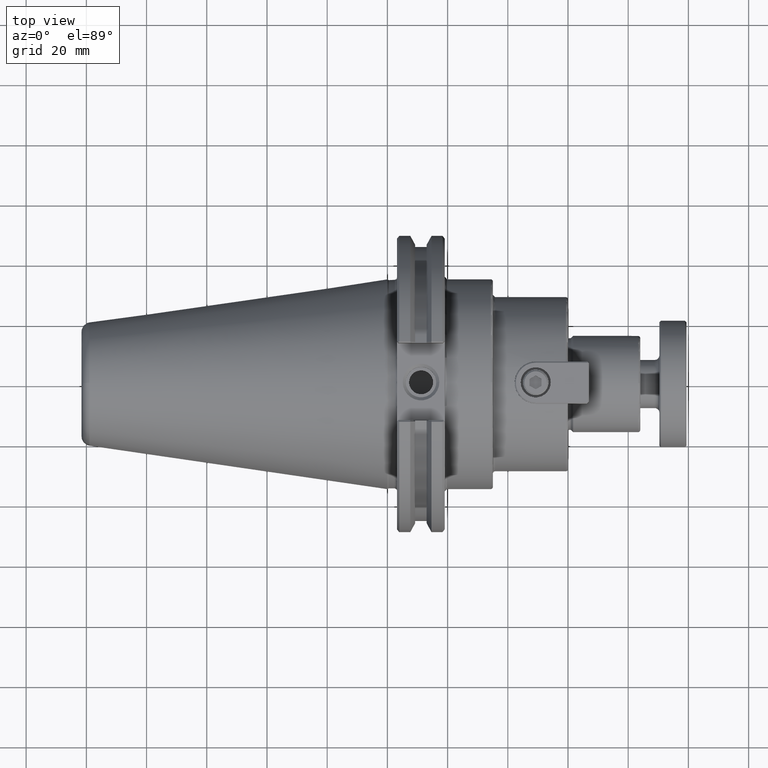
[diagram: clean part render]
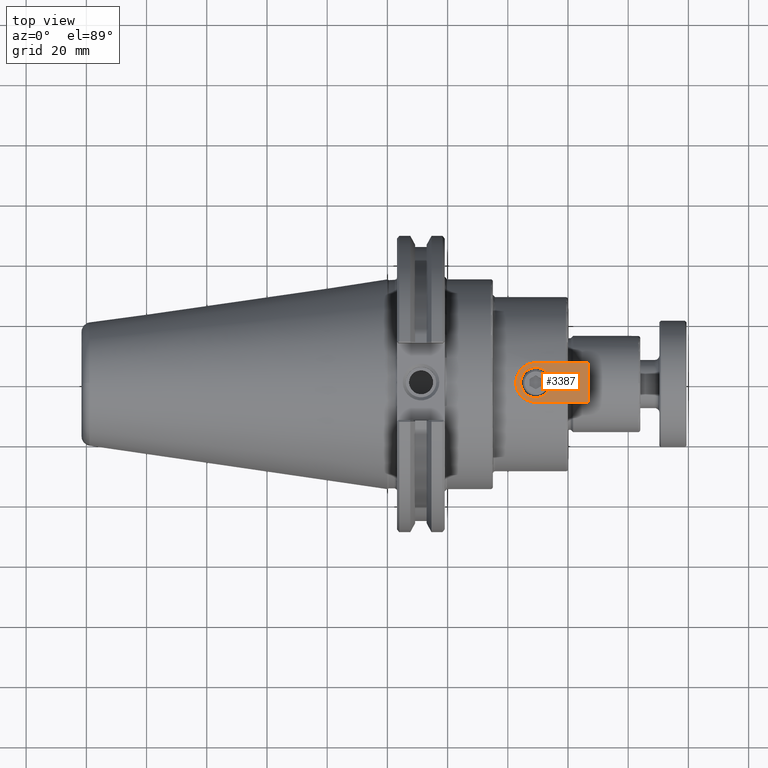
[diagram: same view with one face highlighted and labeled with its STEP entity id]
A machine part, top view. The second image highlights one B-rep face of the part: STEP entity #3387.
In plain terms, the highlighted planar face has unit normal (0, 0, 1).
Its self-contained STEP definition (entity closure, byte-faithful):
#214=FACE_BOUND('',#645,.T.);
#275=PLANE('',#3849);
#442=FACE_OUTER_BOUND('',#644,.T.);
#644=EDGE_LOOP('',(#2870,#2871,#2872,#2873));
#645=EDGE_LOOP('',(#2874));
#817=CIRCLE('',#3846,0.259606299212598);
#819=CIRCLE('',#3850,0.197);
#1003=LINE('',#6741,#1229);
#1022=LINE('',#6785,#1248);
#1024=LINE('',#6792,#1250);
#1229=VECTOR('',#4604,0.393700787401575);
#1248=VECTOR('',#4649,0.393700787401575);
#1250=VECTOR('',#4659,0.393700787401575);
#1536=VERTEX_POINT('',#6729);
#1540=VERTEX_POINT('',#6739);
#1552=VERTEX_POINT('',#6783);
#1553=VERTEX_POINT('',#6787);
#1554=VERTEX_POINT('',#6794);
#1978=EDGE_CURVE('',#1540,#1536,#1003,.T.);
#2000=EDGE_CURVE('',#1552,#1540,#1022,.T.);
#2002=EDGE_CURVE('',#1553,#1552,#817,.T.);
#2004=EDGE_CURVE('',#1536,#1553,#1024,.T.);
#2005=EDGE_CURVE('',#1554,#1554,#819,.T.);
#2870=ORIENTED_EDGE('',*,*,#1978,.F.);
#2871=ORIENTED_EDGE('',*,*,#2000,.F.);
#2872=ORIENTED_EDGE('',*,*,#2002,.F.);
#2873=ORIENTED_EDGE('',*,*,#2004,.F.);
#2874=ORIENTED_EDGE('',*,*,#2005,.T.);
#3387=ADVANCED_FACE('',(#442,#214),#275,.T.);
#3846=AXIS2_PLACEMENT_3D('',#6789,#4653,#4654);
#3849=AXIS2_PLACEMENT_3D('',#6793,#4660,#4661);
#3850=AXIS2_PLACEMENT_3D('',#6795,#4662,#4663);
#4604=DIRECTION('',(0.,-1.,0.));
#4649=DIRECTION('',(1.,0.,0.));
#4653=DIRECTION('center_axis',(0.,0.,-1.));
#4654=DIRECTION('ref_axis',(0.,1.,0.));
#4659=DIRECTION('',(-1.,3.75286656211321E-16,0.));
#4660=DIRECTION('center_axis',(0.,0.,1.));
#4661=DIRECTION('ref_axis',(1.,0.,0.));
#4662=DIRECTION('center_axis',(0.,0.,-1.));
#4663=DIRECTION('ref_axis',(1.,0.,0.));
#6729=CARTESIAN_POINT('',(0.683818897637795,-0.259606299212599,0.));
#6739=CARTESIAN_POINT('',(0.683818897637795,0.259606299212598,0.));
#6741=CARTESIAN_POINT('',(0.683818897637795,-0.137303149606299,0.));
#6783=CARTESIAN_POINT('',(0.,0.259606299212598,0.));
#6785=CARTESIAN_POINT('',(0.480421626774777,0.259606299212598,0.));
#6787=CARTESIAN_POINT('',(-1.47079908640228E-16,-0.259606299212598,0.));
#6789=CARTESIAN_POINT('Origin',(0.,0.,0.));
#6792=CARTESIAN_POINT('',(0.13101217795588,-0.259606299212598,0.));
#6793=CARTESIAN_POINT('Origin',(0.262024355911759,-2.18547839493141E-17,
0.));
#6794=CARTESIAN_POINT('',(-0.197,1.95840259554253E-17,0.));
#6795=CARTESIAN_POINT('Origin',(0.,4.37095678986282E-17,0.));